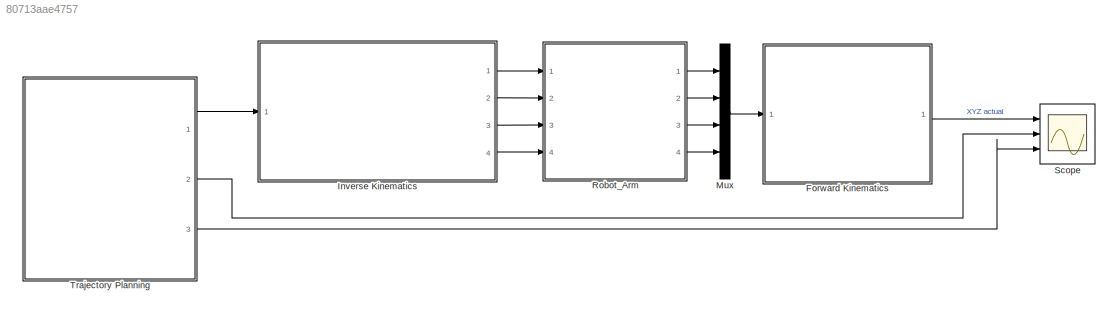
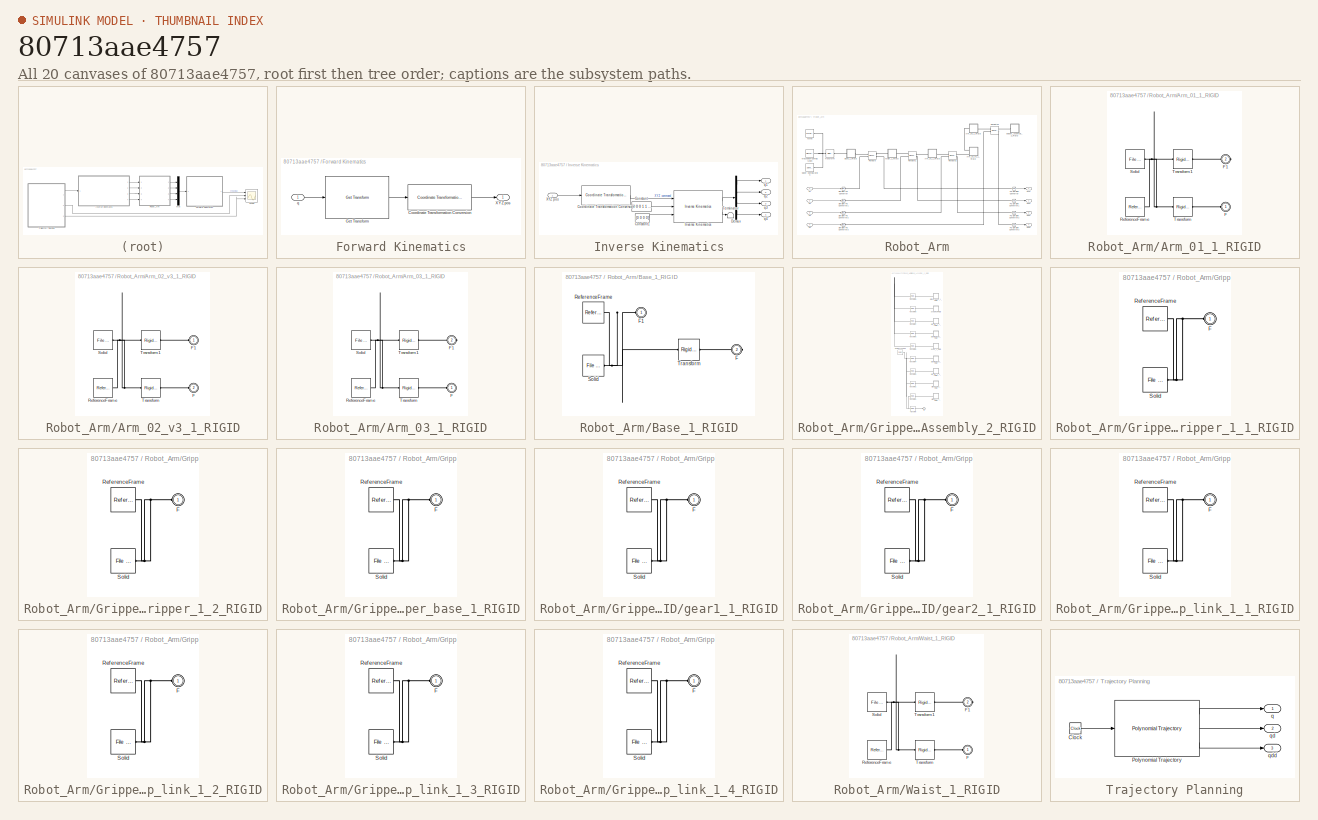
[diagram: thumbnail index - all 20 canvases of the model, root first then tree order]
MODEL slx_80713aae4757
KIND model
CONFIG AbsTol = auto
CONFIG EnableMultiTasking = off
CONFIG FixedStep = auto
CONFIG MaxStep = auto
CONFIG MinStep = auto
CONFIG RelTol = 1e-3
CONFIG SampleTimeConstraint = Unconstrained
CONFIG SolverName = VariableStepAuto
CONFIG StartTime = 0.0
CONFIG StopTime = 10.0
WORKSPACE source: external: MATLAB File  (data not in archive)
BLOCK [SubSystem] Forward Kinematics
  Ports = [1, 1]
  RequestExecContextInheritance = off
BLOCK [Reference] Forward Kinematics/Coordinate Transformation Conversion  REF=robotcorelib/Coordinate Transformation Conversion
  Ports = [1, 1]
  SourceBlock = robotcorelib/Coordinate Transformation Conversion
  SourceProductBaseCode = NV,RO,RR,UV
  SourceType = robotics.slcore.internal.block.CoordinateTransformationConversion
BLOCK [Reference] Forward Kinematics/Get Transform  REF=robotmaniplib/Get Transform
  Ports = [1, 1]
  SourceBlock = robotmaniplib/Get Transform
  SourceProductBaseCode = RO
  SourceType = Get Transform
BLOCK [Outport] Forward Kinematics/XYZ pos
BLOCK [Inport] Forward Kinematics/q
BLOCK [SubSystem] Inverse Kinematics
  Ports = [1, 4]
  RequestExecContextInheritance = off
BLOCK [Constant] Inverse Kinematics/Constant
  Value = [0 0 0 1 1 1]
BLOCK [Constant] Inverse Kinematics/Constant1
  Value = [0 0 0 0]
BLOCK [Reference] Inverse Kinematics/Coordinate Transformation Conversion  REF=robotcorelib/Coordinate Transformation Conversion
  Ports = [1, 1]
  SourceBlock = robotcorelib/Coordinate Transformation Conversion
  SourceProductBaseCode = NV,RO,RR,UV
  SourceType = robotics.slcore.internal.block.CoordinateTransformationConversion
BLOCK [Demux] Inverse Kinematics/Demux
  Ports = [1, 4]
BLOCK [Reference] Inverse Kinematics/Inverse Kinematics  REF=robotmaniplib/Inverse Kinematics
  Ports = [3, 2]
  SourceBlock = robotmaniplib/Inverse Kinematics
  SourceProductBaseCode = RO
  SourceType = Inverse Kinematics
BLOCK [Terminator] Inverse Kinematics/Terminator
BLOCK [Inport] Inverse Kinematics/XYZ pos
BLOCK [Outport] Inverse Kinematics/q1
BLOCK [Outport] Inverse Kinematics/q2
  Port = 2
BLOCK [Outport] Inverse Kinematics/q3
  Port = 3
BLOCK [Outport] Inverse Kinematics/q4
  Port = 4
BLOCK [Mux] Mux
  DisplayOption = bar
  Ports = [4, 1]
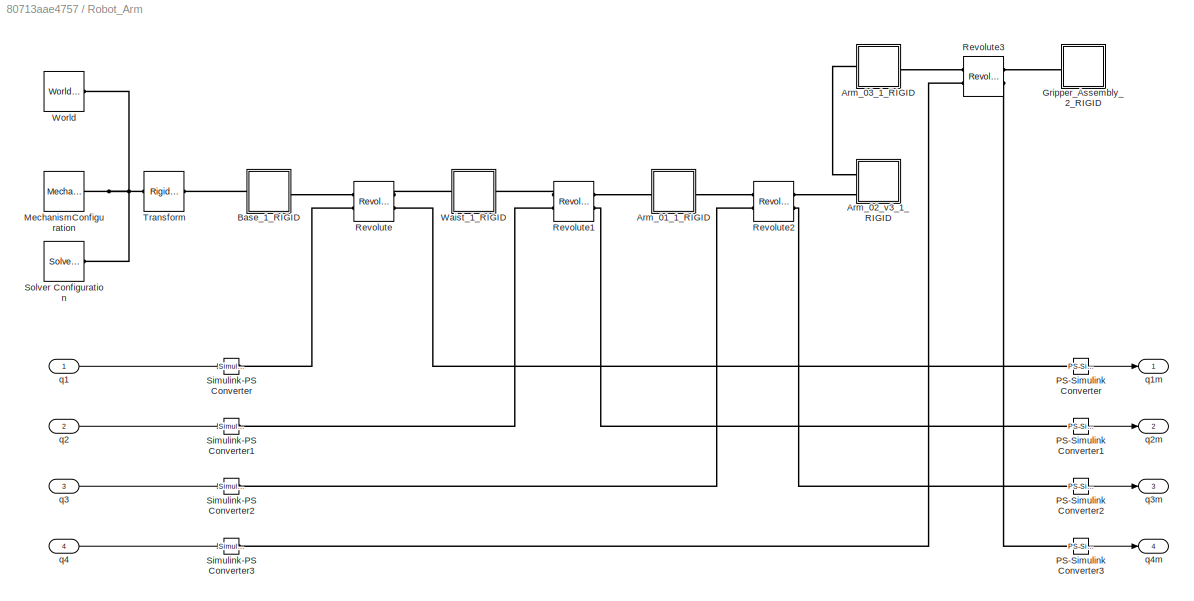
BLOCK [SubSystem] Robot_Arm
  Ports = [4, 4]
  RequestExecContextInheritance = off
BLOCK [SubSystem] Robot_Arm/Arm_01_1_RIGID
  Ports = [0, 0, 0, 0, 0, 1, 1]
  RequestExecContextInheritance = off
BLOCK [PMIOPort] Robot_Arm/Arm_01_1_RIGID/F
  Side = Left
BLOCK [PMIOPort] Robot_Arm/Arm_01_1_RIGID/F1
  Port = 2
  Side = Right
BLOCK [Reference] Robot_Arm/Arm_01_1_RIGID/ReferenceFrame  REF=sm_lib/Frames and
Transforms/Reference
Frame
  Ports = [0, 0, 0, 0, 0, 0, 1]
  SourceBlock = sm_lib/Frames and\nTransforms/Reference\nFrame
  SourceProductBaseCode = MS
  SourceType = Reference\nFrame
BLOCK [Reference] Robot_Arm/Arm_01_1_RIGID/Solid  REF=sm_lib/Body Elements/File Solid
  Ports = [0, 0, 0, 0, 0, 0, 1]
  SourceBlock = sm_lib/Body Elements/File Solid
  SourceProductBaseCode = MS
  SourceType = File Solid
BLOCK [Reference] Robot_Arm/Arm_01_1_RIGID/Transform  REF=sm_lib/Frames and
Transforms/Rigid
Transform
  Ports = [0, 0, 0, 0, 0, 1, 1]
  SourceBlock = sm_lib/Frames and\nTransforms/Rigid\nTransform
  SourceProductBaseCode = MS
  SourceType = Rigid\nTransform
BLOCK [Reference] Robot_Arm/Arm_01_1_RIGID/Transform1  REF=sm_lib/Frames and
Transforms/Rigid
Transform
  Ports = [0, 0, 0, 0, 0, 1, 1]
  SourceBlock = sm_lib/Frames and\nTransforms/Rigid\nTransform
  SourceProductBaseCode = MS
  SourceType = Rigid\nTransform
BLOCK [SubSystem] Robot_Arm/Arm_02_v3_1_RIGID
  Ports = [0, 0, 0, 0, 0, 2]
  RequestExecContextInheritance = off
BLOCK [PMIOPort] Robot_Arm/Arm_02_v3_1_RIGID/F
  Port = 2
  Side = Left
BLOCK [PMIOPort] Robot_Arm/Arm_02_v3_1_RIGID/F1
  Side = Left
BLOCK [Reference] Robot_Arm/Arm_02_v3_1_RIGID/ReferenceFrame  REF=sm_lib/Frames and
Transforms/Reference
Frame
  Ports = [0, 0, 0, 0, 0, 0, 1]
  SourceBlock = sm_lib/Frames and\nTransforms/Reference\nFrame
  SourceProductBaseCode = MS
  SourceType = Reference\nFrame
BLOCK [Reference] Robot_Arm/Arm_02_v3_1_RIGID/Solid  REF=sm_lib/Body Elements/File Solid
  Ports = [0, 0, 0, 0, 0, 0, 1]
  SourceBlock = sm_lib/Body Elements/File Solid
  SourceProductBaseCode = MS
  SourceType = File Solid
BLOCK [Reference] Robot_Arm/Arm_02_v3_1_RIGID/Transform  REF=sm_lib/Frames and
Transforms/Rigid
Transform
  Ports = [0, 0, 0, 0, 0, 1, 1]
  SourceBlock = sm_lib/Frames and\nTransforms/Rigid\nTransform
  SourceProductBaseCode = MS
  SourceType = Rigid\nTransform
BLOCK [Reference] Robot_Arm/Arm_02_v3_1_RIGID/Transform1  REF=sm_lib/Frames and
Transforms/Rigid
Transform
  Ports = [0, 0, 0, 0, 0, 1, 1]
  SourceBlock = sm_lib/Frames and\nTransforms/Rigid\nTransform
  SourceProductBaseCode = MS
  SourceType = Rigid\nTransform
BLOCK [SubSystem] Robot_Arm/Arm_03_1_RIGID
  Ports = [0, 0, 0, 0, 0, 1, 1]
  RequestExecContextInheritance = off
BLOCK [PMIOPort] Robot_Arm/Arm_03_1_RIGID/F
  Side = Left
BLOCK [PMIOPort] Robot_Arm/Arm_03_1_RIGID/F1
  Port = 2
  Side = Right
BLOCK [Reference] Robot_Arm/Arm_03_1_RIGID/ReferenceFrame  REF=sm_lib/Frames and
Transforms/Reference
Frame
  Ports = [0, 0, 0, 0, 0, 0, 1]
  SourceBlock = sm_lib/Frames and\nTransforms/Reference\nFrame
  SourceProductBaseCode = MS
  SourceType = Reference\nFrame
BLOCK [Reference] Robot_Arm/Arm_03_1_RIGID/Solid  REF=sm_lib/Body Elements/File Solid
  Ports = [0, 0, 0, 0, 0, 0, 1]
  SourceBlock = sm_lib/Body Elements/File Solid
  SourceProductBaseCode = MS
  SourceType = File Solid
BLOCK [Reference] Robot_Arm/Arm_03_1_RIGID/Transform  REF=sm_lib/Frames and
Transforms/Rigid
Transform
  Ports = [0, 0, 0, 0, 0, 1, 1]
  SourceBlock = sm_lib/Frames and\nTransforms/Rigid\nTransform
  SourceProductBaseCode = MS
  SourceType = Rigid\nTransform
BLOCK [Reference] Robot_Arm/Arm_03_1_RIGID/Transform1  REF=sm_lib/Frames and
Transforms/Rigid
Transform
  Ports = [0, 0, 0, 0, 0, 1, 1]
  SourceBlock = sm_lib/Frames and\nTransforms/Rigid\nTransform
  SourceProductBaseCode = MS
  SourceType = Rigid\nTransform
BLOCK [SubSystem] Robot_Arm/Base_1_RIGID
  Ports = [0, 0, 0, 0, 0, 1, 1]
  RequestExecContextInheritance = off
BLOCK [PMIOPort] Robot_Arm/Base_1_RIGID/F
  Port = 2
  Side = Right
BLOCK [PMIOPort] Robot_Arm/Base_1_RIGID/F1
  Side = Left
BLOCK [Reference] Robot_Arm/Base_1_RIGID/ReferenceFrame  REF=sm_lib/Frames and
Transforms/Reference
Frame
  Ports = [0, 0, 0, 0, 0, 0, 1]
  SourceBlock = sm_lib/Frames and\nTransforms/Reference\nFrame
  SourceProductBaseCode = MS
  SourceType = Reference\nFrame
BLOCK [Reference] Robot_Arm/Base_1_RIGID/Solid  REF=sm_lib/Body Elements/File Solid
  Ports = [0, 0, 0, 0, 0, 0, 1]
  SourceBlock = sm_lib/Body Elements/File Solid
  SourceProductBaseCode = MS
  SourceType = File Solid
BLOCK [Reference] Robot_Arm/Base_1_RIGID/Transform  REF=sm_lib/Frames and
Transforms/Rigid
Transform
  Ports = [0, 0, 0, 0, 0, 1, 1]
  SourceBlock = sm_lib/Frames and\nTransforms/Rigid\nTransform
  SourceProductBaseCode = MS
  SourceType = Rigid\nTransform
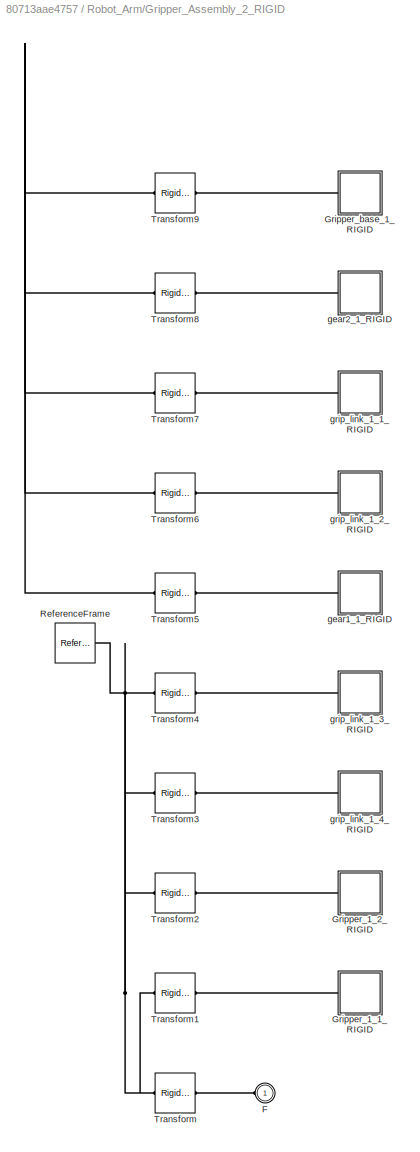
BLOCK [SubSystem] Robot_Arm/Gripper_Assembly_2_RIGID
  Ports = [0, 0, 0, 0, 0, 1]
  RequestExecContextInheritance = off
BLOCK [PMIOPort] Robot_Arm/Gripper_Assembly_2_RIGID/F
  Side = Left
BLOCK [SubSystem] Robot_Arm/Gripper_Assembly_2_RIGID/Gripper_1_1_RIGID
  Ports = [0, 0, 0, 0, 0, 1]
  RequestExecContextInheritance = off
BLOCK [PMIOPort] Robot_Arm/Gripper_Assembly_2_RIGID/Gripper_1_1_RIGID/F
  Side = Left
BLOCK [Reference] Robot_Arm/Gripper_Assembly_2_RIGID/Gripper_1_1_RIGID/ReferenceFrame  REF=sm_lib/Frames and
Transforms/Reference
Frame
  Ports = [0, 0, 0, 0, 0, 0, 1]
  SourceBlock = sm_lib/Frames and\nTransforms/Reference\nFrame
  SourceProductBaseCode = MS
  SourceType = Reference\nFrame
BLOCK [Reference] Robot_Arm/Gripper_Assembly_2_RIGID/Gripper_1_1_RIGID/Solid  REF=sm_lib/Body Elements/File Solid
  Ports = [0, 0, 0, 0, 0, 0, 1]
  SourceBlock = sm_lib/Body Elements/File Solid
  SourceProductBaseCode = MS
  SourceType = File Solid
BLOCK [SubSystem] Robot_Arm/Gripper_Assembly_2_RIGID/Gripper_1_2_RIGID
  Ports = [0, 0, 0, 0, 0, 1]
  RequestExecContextInheritance = off
BLOCK [PMIOPort] Robot_Arm/Gripper_Assembly_2_RIGID/Gripper_1_2_RIGID/F
  Side = Left
BLOCK [Reference] Robot_Arm/Gripper_Assembly_2_RIGID/Gripper_1_2_RIGID/ReferenceFrame  REF=sm_lib/Frames and
Transforms/Reference
Frame
  Ports = [0, 0, 0, 0, 0, 0, 1]
  SourceBlock = sm_lib/Frames and\nTransforms/Reference\nFrame
  SourceProductBaseCode = MS
  SourceType = Reference\nFrame
BLOCK [Reference] Robot_Arm/Gripper_Assembly_2_RIGID/Gripper_1_2_RIGID/Solid  REF=sm_lib/Body Elements/File Solid
  Ports = [0, 0, 0, 0, 0, 0, 1]
  SourceBlock = sm_lib/Body Elements/File Solid
  SourceProductBaseCode = MS
  SourceType = File Solid
BLOCK [SubSystem] Robot_Arm/Gripper_Assembly_2_RIGID/Gripper_base_1_RIGID
  Ports = [0, 0, 0, 0, 0, 1]
  RequestExecContextInheritance = off
BLOCK [PMIOPort] Robot_Arm/Gripper_Assembly_2_RIGID/Gripper_base_1_RIGID/F
  Side = Left
BLOCK [Reference] Robot_Arm/Gripper_Assembly_2_RIGID/Gripper_base_1_RIGID/ReferenceFrame  REF=sm_lib/Frames and
Transforms/Reference
Frame
  Ports = [0, 0, 0, 0, 0, 0, 1]
  SourceBlock = sm_lib/Frames and\nTransforms/Reference\nFrame
  SourceProductBaseCode = MS
  SourceType = Reference\nFrame
BLOCK [Reference] Robot_Arm/Gripper_Assembly_2_RIGID/Gripper_base_1_RIGID/Solid  REF=sm_lib/Body Elements/File Solid
  Ports = [0, 0, 0, 0, 0, 0, 1]
  SourceBlock = sm_lib/Body Elements/File Solid
  SourceProductBaseCode = MS
  SourceType = File Solid
BLOCK [Reference] Robot_Arm/Gripper_Assembly_2_RIGID/ReferenceFrame  REF=sm_lib/Frames and
Transforms/Reference
Frame
  Ports = [0, 0, 0, 0, 0, 0, 1]
  SourceBlock = sm_lib/Frames and\nTransforms/Reference\nFrame
  SourceProductBaseCode = MS
  SourceType = Reference\nFrame
BLOCK [Reference] Robot_Arm/Gripper_Assembly_2_RIGID/Transform  REF=sm_lib/Frames and
Transforms/Rigid
Transform
  Ports = [0, 0, 0, 0, 0, 1, 1]
  SourceBlock = sm_lib/Frames and\nTransforms/Rigid\nTransform
  SourceProductBaseCode = MS
  SourceType = Rigid\nTransform
BLOCK [Reference] Robot_Arm/Gripper_Assembly_2_RIGID/Transform1  REF=sm_lib/Frames and
Transforms/Rigid
Transform
  Ports = [0, 0, 0, 0, 0, 1, 1]
  SourceBlock = sm_lib/Frames and\nTransforms/Rigid\nTransform
  SourceProductBaseCode = MS
  SourceType = Rigid\nTransform
BLOCK [Reference] Robot_Arm/Gripper_Assembly_2_RIGID/Transform2  REF=sm_lib/Frames and
Transforms/Rigid
Transform
  Ports = [0, 0, 0, 0, 0, 1, 1]
  SourceBlock = sm_lib/Frames and\nTransforms/Rigid\nTransform
  SourceProductBaseCode = MS
  SourceType = Rigid\nTransform
BLOCK [Reference] Robot_Arm/Gripper_Assembly_2_RIGID/Transform3  REF=sm_lib/Frames and
Transforms/Rigid
Transform
  Ports = [0, 0, 0, 0, 0, 1, 1]
  SourceBlock = sm_lib/Frames and\nTransforms/Rigid\nTransform
  SourceProductBaseCode = MS
  SourceType = Rigid\nTransform
BLOCK [Reference] Robot_Arm/Gripper_Assembly_2_RIGID/Transform4  REF=sm_lib/Frames and
Transforms/Rigid
Transform
  Ports = [0, 0, 0, 0, 0, 1, 1]
  SourceBlock = sm_lib/Frames and\nTransforms/Rigid\nTransform
  SourceProductBaseCode = MS
  SourceType = Rigid\nTransform
BLOCK [Reference] Robot_Arm/Gripper_Assembly_2_RIGID/Transform5  REF=sm_lib/Frames and
Transforms/Rigid
Transform
  Ports = [0, 0, 0, 0, 0, 1, 1]
  SourceBlock = sm_lib/Frames and\nTransforms/Rigid\nTransform
  SourceProductBaseCode = MS
  SourceType = Rigid\nTransform
BLOCK [Reference] Robot_Arm/Gripper_Assembly_2_RIGID/Transform6  REF=sm_lib/Frames and
Transforms/Rigid
Transform
  Ports = [0, 0, 0, 0, 0, 1, 1]
  SourceBlock = sm_lib/Frames and\nTransforms/Rigid\nTransform
  SourceProductBaseCode = MS
  SourceType = Rigid\nTransform
BLOCK [Reference] Robot_Arm/Gripper_Assembly_2_RIGID/Transform7  REF=sm_lib/Frames and
Transforms/Rigid
Transform
  Ports = [0, 0, 0, 0, 0, 1, 1]
  SourceBlock = sm_lib/Frames and\nTransforms/Rigid\nTransform
  SourceProductBaseCode = MS
  SourceType = Rigid\nTransform
BLOCK [Reference] Robot_Arm/Gripper_Assembly_2_RIGID/Transform8  REF=sm_lib/Frames and
Transforms/Rigid
Transform
  Ports = [0, 0, 0, 0, 0, 1, 1]
  SourceBlock = sm_lib/Frames and\nTransforms/Rigid\nTransform
  SourceProductBaseCode = MS
  SourceType = Rigid\nTransform
BLOCK [Reference] Robot_Arm/Gripper_Assembly_2_RIGID/Transform9  REF=sm_lib/Frames and
Transforms/Rigid
Transform
  Ports = [0, 0, 0, 0, 0, 1, 1]
  SourceBlock = sm_lib/Frames and\nTransforms/Rigid\nTransform
  SourceProductBaseCode = MS
  SourceType = Rigid\nTransform
BLOCK [SubSystem] Robot_Arm/Gripper_Assembly_2_RIGID/gear1_1_RIGID
  Ports = [0, 0, 0, 0, 0, 1]
  RequestExecContextInheritance = off
BLOCK [PMIOPort] Robot_Arm/Gripper_Assembly_2_RIGID/gear1_1_RIGID/F
  Side = Left
BLOCK [Reference] Robot_Arm/Gripper_Assembly_2_RIGID/gear1_1_RIGID/ReferenceFrame  REF=sm_lib/Frames and
Transforms/Reference
Frame
  Ports = [0, 0, 0, 0, 0, 0, 1]
  SourceBlock = sm_lib/Frames and\nTransforms/Reference\nFrame
  SourceProductBaseCode = MS
  SourceType = Reference\nFrame
BLOCK [Reference] Robot_Arm/Gripper_Assembly_2_RIGID/gear1_1_RIGID/Solid  REF=sm_lib/Body Elements/File Solid
  Ports = [0, 0, 0, 0, 0, 0, 1]
  SourceBlock = sm_lib/Body Elements/File Solid
  SourceProductBaseCode = MS
  SourceType = File Solid
BLOCK [SubSystem] Robot_Arm/Gripper_Assembly_2_RIGID/gear2_1_RIGID
  Ports = [0, 0, 0, 0, 0, 1]
  RequestExecContextInheritance = off
BLOCK [PMIOPort] Robot_Arm/Gripper_Assembly_2_RIGID/gear2_1_RIGID/F
  Side = Left
BLOCK [Reference] Robot_Arm/Gripper_Assembly_2_RIGID/gear2_1_RIGID/ReferenceFrame  REF=sm_lib/Frames and
Transforms/Reference
Frame
  Ports = [0, 0, 0, 0, 0, 0, 1]
  SourceBlock = sm_lib/Frames and\nTransforms/Reference\nFrame
  SourceProductBaseCode = MS
  SourceType = Reference\nFrame
BLOCK [Reference] Robot_Arm/Gripper_Assembly_2_RIGID/gear2_1_RIGID/Solid  REF=sm_lib/Body Elements/File Solid
  Ports = [0, 0, 0, 0, 0, 0, 1]
  SourceBlock = sm_lib/Body Elements/File Solid
  SourceProductBaseCode = MS
  SourceType = File Solid
BLOCK [SubSystem] Robot_Arm/Gripper_Assembly_2_RIGID/grip_link_1_1_RIGID
  Ports = [0, 0, 0, 0, 0, 1]
  RequestExecContextInheritance = off
BLOCK [PMIOPort] Robot_Arm/Gripper_Assembly_2_RIGID/grip_link_1_1_RIGID/F
  Side = Left
BLOCK [Reference] Robot_Arm/Gripper_Assembly_2_RIGID/grip_link_1_1_RIGID/ReferenceFrame  REF=sm_lib/Frames and
Transforms/Reference
Frame
  Ports = [0, 0, 0, 0, 0, 0, 1]
  SourceBlock = sm_lib/Frames and\nTransforms/Reference\nFrame
  SourceProductBaseCode = MS
  SourceType = Reference\nFrame
BLOCK [Reference] Robot_Arm/Gripper_Assembly_2_RIGID/grip_link_1_1_RIGID/Solid  REF=sm_lib/Body Elements/File Solid
  Ports = [0, 0, 0, 0, 0, 0, 1]
  SourceBlock = sm_lib/Body Elements/File Solid
  SourceProductBaseCode = MS
  SourceType = File Solid
BLOCK [SubSystem] Robot_Arm/Gripper_Assembly_2_RIGID/grip_link_1_2_RIGID
  Ports = [0, 0, 0, 0, 0, 1]
  RequestExecContextInheritance = off
BLOCK [PMIOPort] Robot_Arm/Gripper_Assembly_2_RIGID/grip_link_1_2_RIGID/F
  Side = Left
BLOCK [Reference] Robot_Arm/Gripper_Assembly_2_RIGID/grip_link_1_2_RIGID/ReferenceFrame  REF=sm_lib/Frames and
Transforms/Reference
Frame
  Ports = [0, 0, 0, 0, 0, 0, 1]
  SourceBlock = sm_lib/Frames and\nTransforms/Reference\nFrame
  SourceProductBaseCode = MS
  SourceType = Reference\nFrame
BLOCK [Reference] Robot_Arm/Gripper_Assembly_2_RIGID/grip_link_1_2_RIGID/Solid  REF=sm_lib/Body Elements/File Solid
  Ports = [0, 0, 0, 0, 0, 0, 1]
  SourceBlock = sm_lib/Body Elements/File Solid
  SourceProductBaseCode = MS
  SourceType = File Solid
BLOCK [SubSystem] Robot_Arm/Gripper_Assembly_2_RIGID/grip_link_1_3_RIGID
  Ports = [0, 0, 0, 0, 0, 1]
  RequestExecContextInheritance = off
BLOCK [PMIOPort] Robot_Arm/Gripper_Assembly_2_RIGID/grip_link_1_3_RIGID/F
  Side = Left
BLOCK [Reference] Robot_Arm/Gripper_Assembly_2_RIGID/grip_link_1_3_RIGID/ReferenceFrame  REF=sm_lib/Frames and
Transforms/Reference
Frame
  Ports = [0, 0, 0, 0, 0, 0, 1]
  SourceBlock = sm_lib/Frames and\nTransforms/Reference\nFrame
  SourceProductBaseCode = MS
  SourceType = Reference\nFrame
BLOCK [Reference] Robot_Arm/Gripper_Assembly_2_RIGID/grip_link_1_3_RIGID/Solid  REF=sm_lib/Body Elements/File Solid
  Ports = [0, 0, 0, 0, 0, 0, 1]
  SourceBlock = sm_lib/Body Elements/File Solid
  SourceProductBaseCode = MS
  SourceType = File Solid
BLOCK [SubSystem] Robot_Arm/Gripper_Assembly_2_RIGID/grip_link_1_4_RIGID
  Ports = [0, 0, 0, 0, 0, 1]
  RequestExecContextInheritance = off
BLOCK [PMIOPort] Robot_Arm/Gripper_Assembly_2_RIGID/grip_link_1_4_RIGID/F
  Side = Left
BLOCK [Reference] Robot_Arm/Gripper_Assembly_2_RIGID/grip_link_1_4_RIGID/ReferenceFrame  REF=sm_lib/Frames and
Transforms/Reference
Frame
  Ports = [0, 0, 0, 0, 0, 0, 1]
  SourceBlock = sm_lib/Frames and\nTransforms/Reference\nFrame
  SourceProductBaseCode = MS
  SourceType = Reference\nFrame
BLOCK [Reference] Robot_Arm/Gripper_Assembly_2_RIGID/grip_link_1_4_RIGID/Solid  REF=sm_lib/Body Elements/File Solid
  Ports = [0, 0, 0, 0, 0, 0, 1]
  SourceBlock = sm_lib/Body Elements/File Solid
  SourceProductBaseCode = MS
  SourceType = File Solid
BLOCK [Reference] Robot_Arm/MechanismConfiguration  REF=sm_lib/Utilities/Mechanism
Configuration
  Ports = [0, 0, 0, 0, 0, 0, 1]
  SourceBlock = sm_lib/Utilities/Mechanism\nConfiguration
  SourceProductBaseCode = MS
  SourceType = Mechanism\nConfiguration
BLOCK [Reference] Robot_Arm/PS-Simulink Converter  REF=nesl_utility/PS-Simulink
Converter
  Ports = [0, 1, 0, 0, 0, 1]
  SourceBlock = nesl_utility/PS-Simulink\nConverter
  SourceProductBaseCode = PW,SS
  SourceType = PS-Simulink\nConverter
BLOCK [Reference] Robot_Arm/PS-Simulink Converter1  REF=nesl_utility/PS-Simulink
Converter
  Ports = [0, 1, 0, 0, 0, 1]
  SourceBlock = nesl_utility/PS-Simulink\nConverter
  SourceProductBaseCode = PW,SS
  SourceType = PS-Simulink\nConverter
BLOCK [Reference] Robot_Arm/PS-Simulink Converter2  REF=nesl_utility/PS-Simulink
Converter
  Ports = [0, 1, 0, 0, 0, 1]
  SourceBlock = nesl_utility/PS-Simulink\nConverter
  SourceProductBaseCode = PW,SS
  SourceType = PS-Simulink\nConverter
BLOCK [Reference] Robot_Arm/PS-Simulink Converter3  REF=nesl_utility/PS-Simulink
Converter
  Ports = [0, 1, 0, 0, 0, 1]
  SourceBlock = nesl_utility/PS-Simulink\nConverter
  SourceProductBaseCode = PW,SS
  SourceType = PS-Simulink\nConverter
BLOCK [Reference] Robot_Arm/Revolute  REF=sm_lib/Joints/Revolute Joint
  Ports = [0, 0, 0, 0, 0, 2, 2]
  SourceBlock = sm_lib/Joints/Revolute Joint
  SourceProductBaseCode = MS
  SourceType = Revolute Joint
BLOCK [Reference] Robot_Arm/Revolute1  REF=sm_lib/Joints/Revolute Joint
  Ports = [0, 0, 0, 0, 0, 2, 2]
  SourceBlock = sm_lib/Joints/Revolute Joint
  SourceProductBaseCode = MS
  SourceType = Revolute Joint
BLOCK [Reference] Robot_Arm/Revolute2  REF=sm_lib/Joints/Revolute Joint
  Ports = [0, 0, 0, 0, 0, 2, 2]
  SourceBlock = sm_lib/Joints/Revolute Joint
  SourceProductBaseCode = MS
  SourceType = Revolute Joint
BLOCK [Reference] Robot_Arm/Revolute3  REF=sm_lib/Joints/Revolute Joint
  Ports = [0, 0, 0, 0, 0, 2, 2]
  SourceBlock = sm_lib/Joints/Revolute Joint
  SourceProductBaseCode = MS
  SourceType = Revolute Joint
BLOCK [Reference] Robot_Arm/Simulink-PS Converter  REF=nesl_utility/Simulink-PS
Converter
  Ports = [1, 0, 0, 0, 0, 0, 1]
  SourceBlock = nesl_utility/Simulink-PS\nConverter
  SourceProductBaseCode = PW,SS
  SourceType = Simulink-PS\nConverter
BLOCK [Reference] Robot_Arm/Simulink-PS Converter1  REF=nesl_utility/Simulink-PS
Converter
  Ports = [1, 0, 0, 0, 0, 0, 1]
  SourceBlock = nesl_utility/Simulink-PS\nConverter
  SourceProductBaseCode = PW,SS
  SourceType = Simulink-PS\nConverter
BLOCK [Reference] Robot_Arm/Simulink-PS Converter2  REF=nesl_utility/Simulink-PS
Converter
  Ports = [1, 0, 0, 0, 0, 0, 1]
  SourceBlock = nesl_utility/Simulink-PS\nConverter
  SourceProductBaseCode = PW,SS
  SourceType = Simulink-PS\nConverter
BLOCK [Reference] Robot_Arm/Simulink-PS Converter3  REF=nesl_utility/Simulink-PS
Converter
  Ports = [1, 0, 0, 0, 0, 0, 1]
  SourceBlock = nesl_utility/Simulink-PS\nConverter
  SourceProductBaseCode = PW,SS
  SourceType = Simulink-PS\nConverter
BLOCK [Reference] Robot_Arm/Solver Configuration  REF=nesl_utility/Solver
Configuration
  Ports = [0, 0, 0, 0, 0, 0, 1]
  SourceBlock = nesl_utility/Solver\nConfiguration
  SourceProductBaseCode = PW,SS
  SourceType = Solver\nConfiguration
BLOCK [Reference] Robot_Arm/Transform  REF=sm_lib/Frames and
Transforms/Rigid
Transform
  Ports = [0, 0, 0, 0, 0, 1, 1]
  SourceBlock = sm_lib/Frames and\nTransforms/Rigid\nTransform
  SourceProductBaseCode = MS
  SourceType = Rigid\nTransform
BLOCK [SubSystem] Robot_Arm/Waist_1_RIGID
  Ports = [0, 0, 0, 0, 0, 1, 1]
  RequestExecContextInheritance = off
BLOCK [PMIOPort] Robot_Arm/Waist_1_RIGID/F
  Side = Left
BLOCK [PMIOPort] Robot_Arm/Waist_1_RIGID/F1
  Port = 2
  Side = Right
BLOCK [Reference] Robot_Arm/Waist_1_RIGID/ReferenceFrame  REF=sm_lib/Frames and
Transforms/Reference
Frame
  Ports = [0, 0, 0, 0, 0, 0, 1]
  SourceBlock = sm_lib/Frames and\nTransforms/Reference\nFrame
  SourceProductBaseCode = MS
  SourceType = Reference\nFrame
BLOCK [Reference] Robot_Arm/Waist_1_RIGID/Solid  REF=sm_lib/Body Elements/File Solid
  Ports = [0, 0, 0, 0, 0, 0, 1]
  SourceBlock = sm_lib/Body Elements/File Solid
  SourceProductBaseCode = MS
  SourceType = File Solid
BLOCK [Reference] Robot_Arm/Waist_1_RIGID/Transform  REF=sm_lib/Frames and
Transforms/Rigid
Transform
  Ports = [0, 0, 0, 0, 0, 1, 1]
  SourceBlock = sm_lib/Frames and\nTransforms/Rigid\nTransform
  SourceProductBaseCode = MS
  SourceType = Rigid\nTransform
BLOCK [Reference] Robot_Arm/Waist_1_RIGID/Transform1  REF=sm_lib/Frames and
Transforms/Rigid
Transform
  Ports = [0, 0, 0, 0, 0, 1, 1]
  SourceBlock = sm_lib/Frames and\nTransforms/Rigid\nTransform
  SourceProductBaseCode = MS
  SourceType = Rigid\nTransform
BLOCK [Reference] Robot_Arm/World  REF=sm_lib/Frames and
Transforms/World Frame
  Ports = [0, 0, 0, 0, 0, 0, 1]
  SourceBlock = sm_lib/Frames and\nTransforms/World Frame
  SourceProductBaseCode = MS
  SourceType = World Frame
BLOCK [Inport] Robot_Arm/q1
BLOCK [Outport] Robot_Arm/q1m
BLOCK [Inport] Robot_Arm/q2
  Port = 2
BLOCK [Outport] Robot_Arm/q2m
  Port = 2
BLOCK [Inport] Robot_Arm/q3
  Port = 3
BLOCK [Outport] Robot_Arm/q3m
  Port = 3
BLOCK [Inport] Robot_Arm/q4
  Port = 4
BLOCK [Outport] Robot_Arm/q4m
  Port = 4
BLOCK [Scope] Scope
  Floating = off
  NumInputPorts = 3
  Ports = [3]
  ScopeSpecificationString = Simulink.scopes.TimeScopeBlockCfg('CurrentConfiguration', extmgr.ConfigurationSet(extmgr.Configuration('Core','General UI',true),extmgr.Configuration('Core','Source UI',true),extmgr.Configuration('Sources','WiredSimulink',true),extmgr.Configuration('Visuals','Time Domain',true),extmgr.Configuration('Tools','Plot Navigation',true),extmgr.Configuration('Tools','Measurements',true)),'Version','2021a'...<+1ch>
BLOCK [SubSystem] Trajectory Planning
  Ports = [0, 3]
  RequestExecContextInheritance = off
BLOCK [Clock] Trajectory Planning/Clock
BLOCK [Reference] Trajectory Planning/Polynomial Trajectory  REF=robotcorelib/Polynomial Trajectory
  Ports = [1, 3]
  SourceBlock = robotcorelib/Polynomial Trajectory
  SourceProductBaseCode = NV,RO,RR,UV
  SourceType = robotics.slcore.internal.block.PolyTrajSys
BLOCK [Outport] Trajectory Planning/q
BLOCK [Outport] Trajectory Planning/qd
  Port = 2
BLOCK [Outport] Trajectory Planning/qdd
  Port = 3
LINE Forward Kinematics/Coordinate Transformation Conversion:1 -> Forward Kinematics/XYZ pos:1
LINE Forward Kinematics/Get Transform:1 -> Forward Kinematics/Coordinate Transformation Conversion:1
LINE Forward Kinematics/q:1 -> Forward Kinematics/Get Transform:1
LINE Forward Kinematics:1 -> Scope:1
LINE Inverse Kinematics/Constant1:1 -> Inverse Kinematics/Inverse Kinematics:3
LINE Inverse Kinematics/Constant:1 -> Inverse Kinematics/Inverse Kinematics:2
LINE Inverse Kinematics/Coordinate Transformation Conversion:1 -> Inverse Kinematics/Inverse Kinematics:1
LINE Inverse Kinematics/Demux:1 -> Inverse Kinematics/q1:1
LINE Inverse Kinematics/Demux:2 -> Inverse Kinematics/q2:1
LINE Inverse Kinematics/Demux:3 -> Inverse Kinematics/q3:1
LINE Inverse Kinematics/Demux:4 -> Inverse Kinematics/q4:1
LINE Inverse Kinematics/Inverse Kinematics:1 -> Inverse Kinematics/Demux:1
LINE Inverse Kinematics/Inverse Kinematics:2 -> Inverse Kinematics/Terminator:1
LINE Inverse Kinematics/XYZ pos:1 -> Inverse Kinematics/Coordinate Transformation Conversion:1
LINE Inverse Kinematics:1 -> Robot_Arm:1
LINE Inverse Kinematics:2 -> Robot_Arm:2
LINE Inverse Kinematics:3 -> Robot_Arm:3
LINE Inverse Kinematics:4 -> Robot_Arm:4
LINE Mux:1 -> Forward Kinematics:1
LINE Robot_Arm/PS-Simulink Converter1:1 -> Robot_Arm/q2m:1
LINE Robot_Arm/PS-Simulink Converter2:1 -> Robot_Arm/q3m:1
LINE Robot_Arm/PS-Simulink Converter3:1 -> Robot_Arm/q4m:1
LINE Robot_Arm/PS-Simulink Converter:1 -> Robot_Arm/q1m:1
LINE Robot_Arm/q1:1 -> Robot_Arm/Simulink-PS Converter:1
LINE Robot_Arm/q2:1 -> Robot_Arm/Simulink-PS Converter1:1
LINE Robot_Arm/q3:1 -> Robot_Arm/Simulink-PS Converter2:1
LINE Robot_Arm/q4:1 -> Robot_Arm/Simulink-PS Converter3:1
LINE Robot_Arm:1 -> Mux:1
LINE Robot_Arm:2 -> Mux:2
LINE Robot_Arm:3 -> Mux:3
LINE Robot_Arm:4 -> Mux:4
LINE Trajectory Planning/Clock:1 -> Trajectory Planning/Polynomial Trajectory:1
LINE Trajectory Planning/Polynomial Trajectory:1 -> Trajectory Planning/q:1
LINE Trajectory Planning/Polynomial Trajectory:2 -> Trajectory Planning/qd:1
LINE Trajectory Planning/Polynomial Trajectory:3 -> Trajectory Planning/qdd:1
LINE Trajectory Planning:1 -> Inverse Kinematics:1
LINE Trajectory Planning:2 -> Scope:2
LINE Trajectory Planning:3 -> Scope:3
PLINE Robot_Arm/Arm_01_1_RIGID/F1:RConn1 -- Robot_Arm/Arm_01_1_RIGID/Transform1:RConn1
PLINE Robot_Arm/Arm_01_1_RIGID/F:RConn1 -- Robot_Arm/Arm_01_1_RIGID/Transform:RConn1
PNET net1: Robot_Arm/Arm_01_1_RIGID/ReferenceFrame:RConn1 -- Robot_Arm/Arm_01_1_RIGID/Solid:RConn1 -- Robot_Arm/Arm_01_1_RIGID/Transform1:LConn1 -- Robot_Arm/Arm_01_1_RIGID/Transform:LConn1
PLINE Robot_Arm/Arm_01_1_RIGID:LConn1 -- Robot_Arm/Revolute1:RConn1
PLINE Robot_Arm/Arm_01_1_RIGID:RConn1 -- Robot_Arm/Revolute2:LConn1
PLINE Robot_Arm/Arm_02_v3_1_RIGID/F1:RConn1 -- Robot_Arm/Arm_02_v3_1_RIGID/Transform1:RConn1
PLINE Robot_Arm/Arm_02_v3_1_RIGID/F:RConn1 -- Robot_Arm/Arm_02_v3_1_RIGID/Transform:RConn1
PNET net2: Robot_Arm/Arm_02_v3_1_RIGID/ReferenceFrame:RConn1 -- Robot_Arm/Arm_02_v3_1_RIGID/Solid:RConn1 -- Robot_Arm/Arm_02_v3_1_RIGID/Transform1:LConn1 -- Robot_Arm/Arm_02_v3_1_RIGID/Transform:LConn1
PLINE Robot_Arm/Arm_02_v3_1_RIGID:LConn1 -- Robot_Arm/Arm_03_1_RIGID:LConn1
PLINE Robot_Arm/Arm_02_v3_1_RIGID:LConn2 -- Robot_Arm/Revolute2:RConn1
PLINE Robot_Arm/Arm_03_1_RIGID/F1:RConn1 -- Robot_Arm/Arm_03_1_RIGID/Transform1:RConn1
PLINE Robot_Arm/Arm_03_1_RIGID/F:RConn1 -- Robot_Arm/Arm_03_1_RIGID/Transform:RConn1
PNET net3: Robot_Arm/Arm_03_1_RIGID/ReferenceFrame:RConn1 -- Robot_Arm/Arm_03_1_RIGID/Solid:RConn1 -- Robot_Arm/Arm_03_1_RIGID/Transform1:LConn1 -- Robot_Arm/Arm_03_1_RIGID/Transform:LConn1
PLINE Robot_Arm/Arm_03_1_RIGID:RConn1 -- Robot_Arm/Revolute3:LConn1
PNET net4: Robot_Arm/Base_1_RIGID/F1:RConn1 -- Robot_Arm/Base_1_RIGID/ReferenceFrame:RConn1 -- Robot_Arm/Base_1_RIGID/Solid:RConn1 -- Robot_Arm/Base_1_RIGID/Transform:LConn1
PLINE Robot_Arm/Base_1_RIGID/F:RConn1 -- Robot_Arm/Base_1_RIGID/Transform:RConn1
PLINE Robot_Arm/Base_1_RIGID:LConn1 -- Robot_Arm/Transform:RConn1
PLINE Robot_Arm/Base_1_RIGID:RConn1 -- Robot_Arm/Revolute:LConn1
PLINE Robot_Arm/Gripper_Assembly_2_RIGID/F:RConn1 -- Robot_Arm/Gripper_Assembly_2_RIGID/Transform:RConn1
PNET net5: Robot_Arm/Gripper_Assembly_2_RIGID/Gripper_1_1_RIGID/F:RConn1 -- Robot_Arm/Gripper_Assembly_2_RIGID/Gripper_1_1_RIGID/ReferenceFrame:RConn1 -- Robot_Arm/Gripper_Assembly_2_RIGID/Gripper_1_1_RIGID/Solid:RConn1
PLINE Robot_Arm/Gripper_Assembly_2_RIGID/Gripper_1_1_RIGID:LConn1 -- Robot_Arm/Gripper_Assembly_2_RIGID/Transform1:RConn1
PNET net6: Robot_Arm/Gripper_Assembly_2_RIGID/Gripper_1_2_RIGID/F:RConn1 -- Robot_Arm/Gripper_Assembly_2_RIGID/Gripper_1_2_RIGID/ReferenceFrame:RConn1 -- Robot_Arm/Gripper_Assembly_2_RIGID/Gripper_1_2_RIGID/Solid:RConn1
PLINE Robot_Arm/Gripper_Assembly_2_RIGID/Gripper_1_2_RIGID:LConn1 -- Robot_Arm/Gripper_Assembly_2_RIGID/Transform2:RConn1
PNET net7: Robot_Arm/Gripper_Assembly_2_RIGID/Gripper_base_1_RIGID/F:RConn1 -- Robot_Arm/Gripper_Assembly_2_RIGID/Gripper_base_1_RIGID/ReferenceFrame:RConn1 -- Robot_Arm/Gripper_Assembly_2_RIGID/Gripper_base_1_RIGID/Solid:RConn1
PLINE Robot_Arm/Gripper_Assembly_2_RIGID/Gripper_base_1_RIGID:LConn1 -- Robot_Arm/Gripper_Assembly_2_RIGID/Transform9:RConn1
PNET net8: Robot_Arm/Gripper_Assembly_2_RIGID/ReferenceFrame:RConn1 -- Robot_Arm/Gripper_Assembly_2_RIGID/Transform1:LConn1 -- Robot_Arm/Gripper_Assembly_2_RIGID/Transform2:LConn1 -- Robot_Arm/Gripper_Assembly_2_RIGID/Transform3:LConn1 -- Robot_Arm/Gripper_Assembly_2_RIGID/Transform4:LConn1 -- Robot_Arm/Gripper_Assembly_2_RIGID/Transform5:LConn1 -- Robot_Arm/Gripper_Assembly_2_RIGID/Transform6:LConn1 -- Robot_Arm/Gripper_Assembly_2_RIGID/Transform7:LConn1 -- Robot_Arm/Gripper_Assembly_2_RIGID/Transform8:LConn1 -- Robot_Arm/Gripper_Assembly_2_RIGID/Transform9:LConn1 -- Robot_Arm/Gripper_Assembly_2_RIGID/Transform:LConn1
PLINE Robot_Arm/Gripper_Assembly_2_RIGID/Transform3:RConn1 -- Robot_Arm/Gripper_Assembly_2_RIGID/grip_link_1_4_RIGID:LConn1
PLINE Robot_Arm/Gripper_Assembly_2_RIGID/Transform4:RConn1 -- Robot_Arm/Gripper_Assembly_2_RIGID/grip_link_1_3_RIGID:LConn1
PLINE Robot_Arm/Gripper_Assembly_2_RIGID/Transform5:RConn1 -- Robot_Arm/Gripper_Assembly_2_RIGID/gear1_1_RIGID:LConn1
PLINE Robot_Arm/Gripper_Assembly_2_RIGID/Transform6:RConn1 -- Robot_Arm/Gripper_Assembly_2_RIGID/grip_link_1_2_RIGID:LConn1
PLINE Robot_Arm/Gripper_Assembly_2_RIGID/Transform7:RConn1 -- Robot_Arm/Gripper_Assembly_2_RIGID/grip_link_1_1_RIGID:LConn1
PLINE Robot_Arm/Gripper_Assembly_2_RIGID/Transform8:RConn1 -- Robot_Arm/Gripper_Assembly_2_RIGID/gear2_1_RIGID:LConn1
PNET net9: Robot_Arm/Gripper_Assembly_2_RIGID/gear1_1_RIGID/F:RConn1 -- Robot_Arm/Gripper_Assembly_2_RIGID/gear1_1_RIGID/ReferenceFrame:RConn1 -- Robot_Arm/Gripper_Assembly_2_RIGID/gear1_1_RIGID/Solid:RConn1
PNET net10: Robot_Arm/Gripper_Assembly_2_RIGID/gear2_1_RIGID/F:RConn1 -- Robot_Arm/Gripper_Assembly_2_RIGID/gear2_1_RIGID/ReferenceFrame:RConn1 -- Robot_Arm/Gripper_Assembly_2_RIGID/gear2_1_RIGID/Solid:RConn1
PNET net11: Robot_Arm/Gripper_Assembly_2_RIGID/grip_link_1_1_RIGID/F:RConn1 -- Robot_Arm/Gripper_Assembly_2_RIGID/grip_link_1_1_RIGID/ReferenceFrame:RConn1 -- Robot_Arm/Gripper_Assembly_2_RIGID/grip_link_1_1_RIGID/Solid:RConn1
PNET net12: Robot_Arm/Gripper_Assembly_2_RIGID/grip_link_1_2_RIGID/F:RConn1 -- Robot_Arm/Gripper_Assembly_2_RIGID/grip_link_1_2_RIGID/ReferenceFrame:RConn1 -- Robot_Arm/Gripper_Assembly_2_RIGID/grip_link_1_2_RIGID/Solid:RConn1
PNET net13: Robot_Arm/Gripper_Assembly_2_RIGID/grip_link_1_3_RIGID/F:RConn1 -- Robot_Arm/Gripper_Assembly_2_RIGID/grip_link_1_3_RIGID/ReferenceFrame:RConn1 -- Robot_Arm/Gripper_Assembly_2_RIGID/grip_link_1_3_RIGID/Solid:RConn1
PNET net14: Robot_Arm/Gripper_Assembly_2_RIGID/grip_link_1_4_RIGID/F:RConn1 -- Robot_Arm/Gripper_Assembly_2_RIGID/grip_link_1_4_RIGID/ReferenceFrame:RConn1 -- Robot_Arm/Gripper_Assembly_2_RIGID/grip_link_1_4_RIGID/Solid:RConn1
PLINE Robot_Arm/Gripper_Assembly_2_RIGID:LConn1 -- Robot_Arm/Revolute3:RConn1
PNET net15: Robot_Arm/MechanismConfiguration:RConn1 -- Robot_Arm/Solver Configuration:RConn1 -- Robot_Arm/Transform:LConn1 -- Robot_Arm/World:RConn1
PLINE Robot_Arm/PS-Simulink Converter1:LConn1 -- Robot_Arm/Revolute1:RConn2
PLINE Robot_Arm/PS-Simulink Converter2:LConn1 -- Robot_Arm/Revolute2:RConn2
PLINE Robot_Arm/PS-Simulink Converter3:LConn1 -- Robot_Arm/Revolute3:RConn2
PLINE Robot_Arm/PS-Simulink Converter:LConn1 -- Robot_Arm/Revolute:RConn2
PLINE Robot_Arm/Revolute1:LConn1 -- Robot_Arm/Waist_1_RIGID:RConn1
PLINE Robot_Arm/Revolute1:LConn2 -- Robot_Arm/Simulink-PS Converter1:RConn1
PLINE Robot_Arm/Revolute2:LConn2 -- Robot_Arm/Simulink-PS Converter2:RConn1
PLINE Robot_Arm/Revolute3:LConn2 -- Robot_Arm/Simulink-PS Converter3:RConn1
PLINE Robot_Arm/Revolute:LConn2 -- Robot_Arm/Simulink-PS Converter:RConn1
PLINE Robot_Arm/Revolute:RConn1 -- Robot_Arm/Waist_1_RIGID:LConn1
PLINE Robot_Arm/Waist_1_RIGID/F1:RConn1 -- Robot_Arm/Waist_1_RIGID/Transform1:RConn1
PLINE Robot_Arm/Waist_1_RIGID/F:RConn1 -- Robot_Arm/Waist_1_RIGID/Transform:RConn1
PNET net16: Robot_Arm/Waist_1_RIGID/ReferenceFrame:RConn1 -- Robot_Arm/Waist_1_RIGID/Solid:RConn1 -- Robot_Arm/Waist_1_RIGID/Transform1:LConn1 -- Robot_Arm/Waist_1_RIGID/Transform:LConn1
note: PNET lines group multi-terminal physical nets as a canonical sorted terminal list (undirected conserving connections); 2-terminal nets keep the pairwise PLINE form
